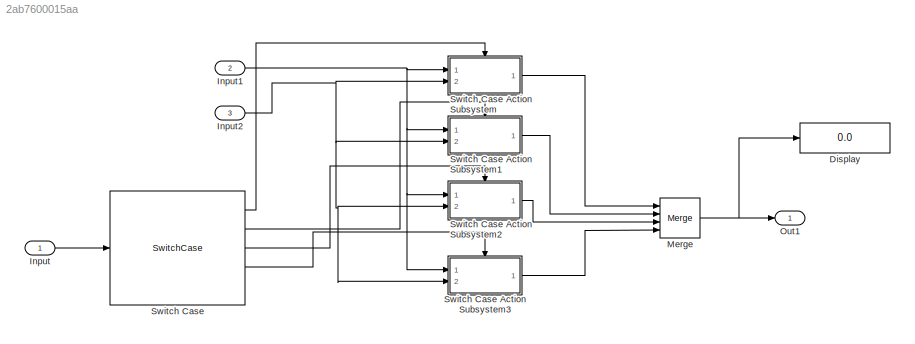
MODEL slx_2ab7600015aa
KIND model
CONFIG AbsTol = auto
CONFIG EnableMultiTasking = off
CONFIG FixedStep = auto
CONFIG MaxStep = auto
CONFIG MinStep = auto
CONFIG RelTol = 1e-3
CONFIG SampleTimeConstraint = Unconstrained
CONFIG Solver = VariableStepAuto
CONFIG SolverName = VariableStepAuto
CONFIG StartTime = 0.0
CONFIG StopTime = 10.0
BLOCK [Display] Display
  Decimation = 1
  Ports = [1]
BLOCK [Inport] Input
  IconDisplay = Port number
BLOCK [Inport] Input1
  IconDisplay = Port number
  Port = 2
BLOCK [Inport] Input2
  IconDisplay = Port number
  Port = 3
BLOCK [Merge] Merge
  Inputs = 4
  Ports = [4, 1]
BLOCK [Outport] Out1
  IconDisplay = Port number
BLOCK [SwitchCase] Switch Case
  CaseConditions = {1 , 2 , 3 , 4}
  Ports = [1, 5]
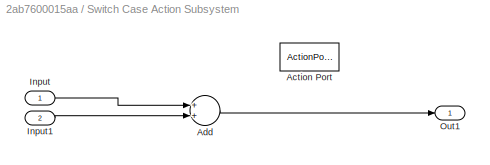
BLOCK [SubSystem] Switch Case Action Subsystem
  Ports = [2, 1, 0, 0, 0, 0, 0, 1]
  RequestExecContextInheritance = off
  TreatAsAtomicUnit = on
BLOCK [ActionPort] Switch Case Action Subsystem/Action Port
  ActionType = case
BLOCK [Sum] Switch Case Action Subsystem/Add
  InputSameDT = off
  OutDataTypeStr = Inherit: Inherit via internal rule
  Ports = [2, 1]
  SaturateOnIntegerOverflow = off
BLOCK [Inport] Switch Case Action Subsystem/Input
  IconDisplay = Port number
BLOCK [Inport] Switch Case Action Subsystem/Input1
  IconDisplay = Port number
  Port = 2
BLOCK [Outport] Switch Case Action Subsystem/Out1
  IconDisplay = Port number
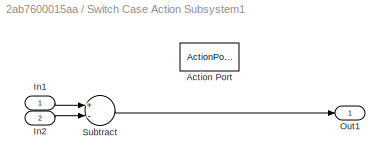
BLOCK [SubSystem] Switch Case Action Subsystem1
  Ports = [2, 1, 0, 0, 0, 0, 0, 1]
  RequestExecContextInheritance = off
  TreatAsAtomicUnit = on
BLOCK [ActionPort] Switch Case Action Subsystem1/Action Port
  ActionType = case
BLOCK [Inport] Switch Case Action Subsystem1/In1
  IconDisplay = Port number
BLOCK [Inport] Switch Case Action Subsystem1/In2
  IconDisplay = Port number
  Port = 2
BLOCK [Outport] Switch Case Action Subsystem1/Out1
  IconDisplay = Port number
BLOCK [Sum] Switch Case Action Subsystem1/Subtract
  InputSameDT = off
  Inputs = +-
  OutDataTypeStr = Inherit: Inherit via internal rule
  Ports = [2, 1]
  SaturateOnIntegerOverflow = off
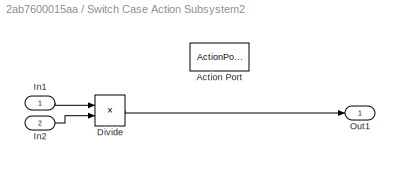
BLOCK [SubSystem] Switch Case Action Subsystem2
  Ports = [2, 1, 0, 0, 0, 0, 0, 1]
  RequestExecContextInheritance = off
  TreatAsAtomicUnit = on
BLOCK [ActionPort] Switch Case Action Subsystem2/Action Port
  ActionType = case
BLOCK [Product] Switch Case Action Subsystem2/Divide
  InputSameDT = off
  Inputs = */
  OutDataTypeStr = Inherit: Inherit via internal rule
  Ports = [2, 1]
  RndMeth = Floor
  SaturateOnIntegerOverflow = off
BLOCK [Inport] Switch Case Action Subsystem2/In1
  IconDisplay = Port number
BLOCK [Inport] Switch Case Action Subsystem2/In2
  IconDisplay = Port number
  Port = 2
BLOCK [Outport] Switch Case Action Subsystem2/Out1
  IconDisplay = Port number
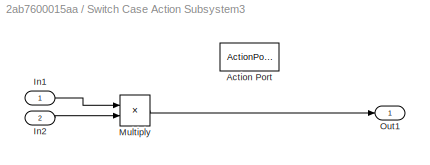
BLOCK [SubSystem] Switch Case Action Subsystem3
  Ports = [2, 1, 0, 0, 0, 0, 0, 1]
  RequestExecContextInheritance = off
  TreatAsAtomicUnit = on
BLOCK [ActionPort] Switch Case Action Subsystem3/Action Port
  ActionType = case
BLOCK [Inport] Switch Case Action Subsystem3/In1
  IconDisplay = Port number
BLOCK [Inport] Switch Case Action Subsystem3/In2
  IconDisplay = Port number
  Port = 2
BLOCK [Product] Switch Case Action Subsystem3/Multiply
  InputSameDT = off
  OutDataTypeStr = Inherit: Inherit via internal rule
  Ports = [2, 1]
  RndMeth = Floor
  SaturateOnIntegerOverflow = off
BLOCK [Outport] Switch Case Action Subsystem3/Out1
  IconDisplay = Port number
NET Input1:1 -> Switch Case Action Subsystem1:1, Switch Case Action Subsystem2:1, Switch Case Action Subsystem3:1, Switch Case Action Subsystem:1
NET Input2:1 -> Switch Case Action Subsystem1:2, Switch Case Action Subsystem2:2, Switch Case Action Subsystem3:2, Switch Case Action Subsystem:2
LINE Input:1 -> Switch Case:1
NET Merge:1 -> Display:1, Out1:1
LINE Switch Case Action Subsystem/Add:1 -> Switch Case Action Subsystem/Out1:1
LINE Switch Case Action Subsystem/Input1:1 -> Switch Case Action Subsystem/Add:2
LINE Switch Case Action Subsystem/Input:1 -> Switch Case Action Subsystem/Add:1
LINE Switch Case Action Subsystem1/In1:1 -> Switch Case Action Subsystem1/Subtract:1
LINE Switch Case Action Subsystem1/In2:1 -> Switch Case Action Subsystem1/Subtract:2
LINE Switch Case Action Subsystem1/Subtract:1 -> Switch Case Action Subsystem1/Out1:1
LINE Switch Case Action Subsystem1:1 -> Merge:2
LINE Switch Case Action Subsystem2/Divide:1 -> Switch Case Action Subsystem2/Out1:1
LINE Switch Case Action Subsystem2/In1:1 -> Switch Case Action Subsystem2/Divide:1
LINE Switch Case Action Subsystem2/In2:1 -> Switch Case Action Subsystem2/Divide:2
LINE Switch Case Action Subsystem2:1 -> Merge:3
LINE Switch Case Action Subsystem3/In1:1 -> Switch Case Action Subsystem3/Multiply:1
LINE Switch Case Action Subsystem3/In2:1 -> Switch Case Action Subsystem3/Multiply:2
LINE Switch Case Action Subsystem3/Multiply:1 -> Switch Case Action Subsystem3/Out1:1
LINE Switch Case Action Subsystem3:1 -> Merge:4
LINE Switch Case Action Subsystem:1 -> Merge:1
LINE Switch Case:1 -> Switch Case Action Subsystem:ifaction
LINE Switch Case:2 -> Switch Case Action Subsystem1:ifaction
LINE Switch Case:3 -> Switch Case Action Subsystem2:ifaction
LINE Switch Case:4 -> Switch Case Action Subsystem3:ifaction
note: NET lines group one-source signal fan-out (src -> all destinations, sorted); 1:1 wires keep LINE
